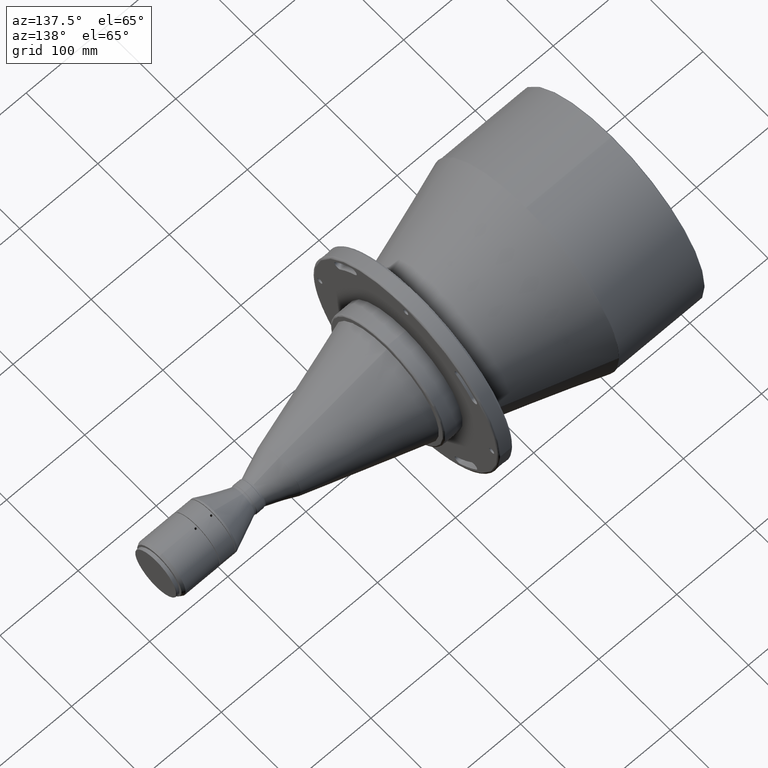
[diagram: clean part render]
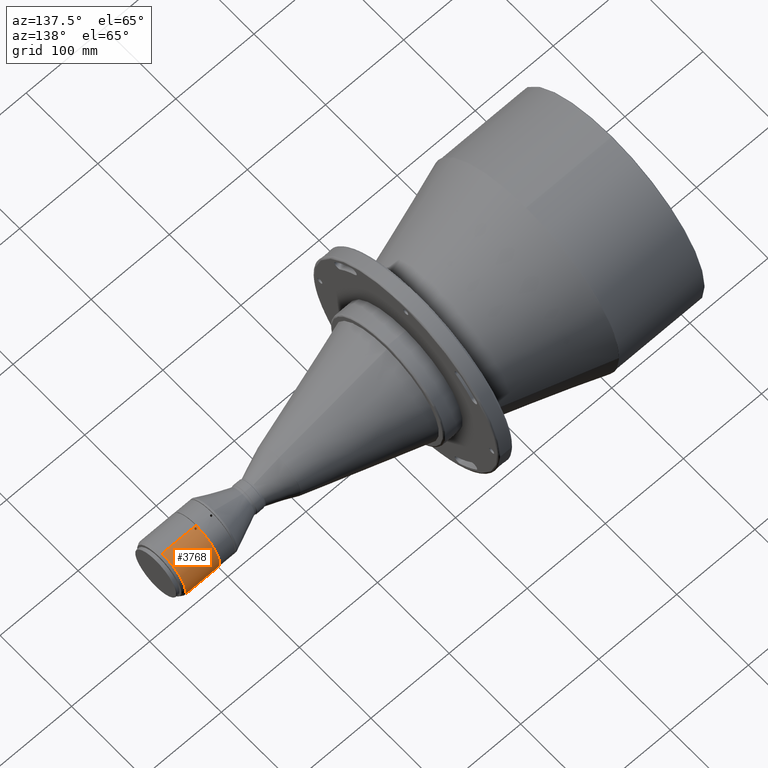
[diagram: same view with one face highlighted and labeled with its STEP entity id]
A machine part, auxiliary view. The second image highlights one B-rep face of the part: STEP entity #3768.
In plain terms, the highlighted cylindrical surface (edge-blend (fillet) strip) has radius 33 mm, axis along (-1, 0, 0).
Its self-contained STEP definition (entity closure, byte-faithful):
#7 = CARTESIAN_POINT ( 'NONE',  ( 243.5272282373895800, 28.02219267935578300, -17.42873081164597300 ) ) ;
#21 = CARTESIAN_POINT ( 'NONE',  ( 243.3651624783625800, 26.64153675590663200, -19.47379057306708100 ) ) ;
#28 = CARTESIAN_POINT ( 'NONE',  ( 284.2358983849999800, 0.0000000000000000000, 0.0000000000000000000 ) ) ;
#34 = CARTESIAN_POINT ( 'NONE',  ( 243.3651624175274700, 28.03931447828191600, -17.40105869158569600 ) ) ;
#38 = CARTESIAN_POINT ( 'NONE',  ( 243.0348375679012100, 26.64153675756148900, -19.47379057080311400 ) ) ;
#50 = CARTESIAN_POINT ( 'NONE',  ( 244.2923288920699500, 1.670705666017859000, 32.95802426565676100 ) ) ;
#73 = CARTESIAN_POINT ( 'NONE',  ( 241.9501112394534600, 27.26842502836673200, -18.58654292900261100 ) ) ;
#185 = FACE_BOUND ( 'NONE', #3283, .T. ) ;
#199 = CARTESIAN_POINT ( 'NONE',  ( 242.4320518004257400, 1.300115199559819000, 32.97458627196414900 ) ) ;
#251 = VERTEX_POINT ( 'NONE', #1190 ) ;
#261 = ORIENTED_EDGE ( 'NONE', *, *, #3414, .T. ) ;
#268 = EDGE_CURVE ( 'NONE', #904, #3269, #2795, .T. ) ;
#281 = FACE_OUTER_BOUND ( 'NONE', #776, .T. ) ;
#315 = CARTESIAN_POINT ( 'NONE',  ( 243.1999999999999900, 1.050101641439986900, 32.98328798865639300 ) ) ;
#325 = CARTESIAN_POINT ( 'NONE',  ( 243.2000000000000200, 28.03931447791268300, -17.40105869218066200 ) ) ;
#330 = CARTESIAN_POINT ( 'NONE',  ( 243.5272282371196300, 1.082627299092439300, 32.98229613588195300 ) ) ;
#342 = CARTESIAN_POINT ( 'NONE',  ( 243.2000000000000200, 28.03931447791268300, -17.40105869218066200 ) ) ;
#355 = CARTESIAN_POINT ( 'NONE',  ( 242.8727717497885700, 26.66077478309826500, -19.44754555795642400 ) ) ;
#379 = DIRECTION ( 'NONE',  ( -1.000000000000000000, 0.0000000000000000000, 0.0000000000000000000 ) ) ;
#386 = CARTESIAN_POINT ( 'NONE',  ( 242.5695962592725700, 27.95555595793834400, -17.53541680387095200 ) ) ;
#555 = CARTESIAN_POINT ( 'NONE',  ( 240.7000000000000200, 0.0000000000000000000, 33.00000000000000000 ) ) ;
#640 = CARTESIAN_POINT ( 'NONE',  ( 243.8304037311280600, 3.386583143060405600, 32.82582833711744300 ) ) ;
#647 = CARTESIAN_POINT ( 'NONE',  ( 244.4170361976247000, 27.54258587966261000, -18.17769468275628600 ) ) ;
#649 = CARTESIAN_POINT ( 'NONE',  ( 243.1999999999999900, 3.544028964507429400, 32.80914291319925300 ) ) ;
#666 = B_SPLINE_CURVE_WITH_KNOTS ( 'NONE', 3,
 ( #2677, #1448, #2390, #3945, #3032, #1162, #2988, #2723, #3919, #1130, #2049, #3636, #3349, #199, #2407, #3045, #3652, #3303 ),
 .UNSPECIFIED., .F., .F.,
 ( 4, 2, 2, 2, 2, 2, 2, 2, 4 ),
 ( 0.0000000000000000000, 0.0004884511457905904200, 0.0009769022915811808400, 0.001465353437371771100, 0.001953804583162361700, 0.002442255728952952200, 0.002930706874743542700, 0.003419158020534133700, 0.003907609166324725100 ),
 .UNSPECIFIED. ) ;
#674 = CARTESIAN_POINT ( 'NONE',  ( 243.2000000000000200, 26.64153675673405900, -19.47379057193509800 ) ) ;
#723 = CYLINDRICAL_SURFACE ( 'NONE', #1023, 33.00000000000000000 ) ;
#731 = CARTESIAN_POINT ( 'NONE',  ( 243.2000000000000200, 28.03931447791268300, -17.40105869218066200 ) ) ;
#743 = CARTESIAN_POINT ( 'NONE',  ( 284.2358983849999800, 0.0000000000000000000, 33.00000000000000000 ) ) ;
#768 = ORIENTED_EDGE ( 'NONE', *, *, #1565, .T. ) ;
#776 = EDGE_LOOP ( 'NONE', ( #3870, #768, #261, #3619 ) ) ;
#904 = VERTEX_POINT ( 'NONE', #731 ) ;
#935 = CARTESIAN_POINT ( 'NONE',  ( 244.4170361972857100, 1.971052437536436900, 32.94142639908850600 ) ) ;
#956 = CIRCLE ( 'NONE', #1385, 33.00000000000000000 ) ;
#971 = B_SPLINE_CURVE_WITH_KNOTS ( 'NONE', 3,
 ( #1278, #38, #355, #3742, #2830, #2236, #3462, #1264, #73, #1892, #3446, #3486, #2532, #982, #386, #2820, #2191, #342 ),
 .UNSPECIFIED., .F., .F.,
 ( 4, 2, 2, 2, 2, 2, 2, 2, 4 ),
 ( 0.0000000000000000000, 0.0004884511462644152800, 0.0009769022925288305600, 0.001465353438793245800, 0.001953804585057661100, 0.002442255731322076600, 0.002930706877586491700, 0.003419158023850906800, 0.003907609170115322300 ),
 .UNSPECIFIED. ) ;
#982 = CARTESIAN_POINT ( 'NONE',  ( 242.4320518003721100, 27.90677179116664800, -17.61322592641915100 ) ) ;
#1007 = FACE_BOUND ( 'NONE', #1269, .T. ) ;
#1023 = AXIS2_PLACEMENT_3D ( 'NONE', #2619, #1977, #2939 ) ;
#1024 = DIRECTION ( 'NONE',  ( -1.000000000000000000, 0.0000000000000000000, 0.0000000000000000000 ) ) ;
#1028 = ORIENTED_EDGE ( 'NONE', *, *, #1296, .F. ) ;
#1072 = EDGE_CURVE ( 'NONE', #2652, #3483, #666, .T. ) ;
#1130 = CARTESIAN_POINT ( 'NONE',  ( 241.9498893390875800, 2.136921316476925600, 32.93114253812770200 ) ) ;
#1162 = CARTESIAN_POINT ( 'NONE',  ( 242.2008022910318900, 3.064803770389668900, 32.85757571834730600 ) ) ;
#1190 = CARTESIAN_POINT ( 'NONE',  ( 240.7000000000000200, 4.041334437186266200E-015, -33.00000000000000000 ) ) ;
#1213 = DIRECTION ( 'NONE',  ( 1.000000000000000000, -0.0000000000000000000, -0.0000000000000000000 ) ) ;
#1264 = CARTESIAN_POINT ( 'NONE',  ( 241.9829638018006200, 27.17539497138055200, -18.72219348973983000 ) ) ;
#1268 = CARTESIAN_POINT ( 'NONE',  ( 244.2927177565511300, 2.925509807217036200, 32.87041680619736200 ) ) ;
#1269 = EDGE_LOOP ( 'NONE', ( #2884, #1745 ) ) ;
#1278 = CARTESIAN_POINT ( 'NONE',  ( 243.2000000000000200, 26.64153675673405900, -19.47379057193509800 ) ) ;
#1287 = CARTESIAN_POINT ( 'NONE',  ( 244.4501106612322000, 27.26938320606071600, -18.58513710309384200 ) ) ;
#1296 = EDGE_CURVE ( 'NONE', #3483, #2652, #3733, .T. ) ;
#1385 = AXIS2_PLACEMENT_3D ( 'NONE', #2673, #3582, #1714 ) ;
#1399 = EDGE_CURVE ( 'NONE', #3984, #1674, #1749, .T. ) ;
#1448 = CARTESIAN_POINT ( 'NONE',  ( 243.0348375681713500, 3.544028961279206000, 32.80914291181510800 ) ) ;
#1548 = CARTESIAN_POINT ( 'NONE',  ( 243.8299545228962300, 27.95568541493182100, -17.53521009982846500 ) ) ;
#1565 = EDGE_CURVE ( 'NONE', #3984, #251, #3795, .T. ) ;
#1568 = CARTESIAN_POINT ( 'NONE',  ( 243.9679481917600000, 3.295232320676106900, 32.83527193875876500 ) ) ;
#1578 = CARTESIAN_POINT ( 'NONE',  ( 244.1991977048675700, 1.531407275056893900, 32.96464918660382200 ) ) ;
#1674 = VERTEX_POINT ( 'NONE', #1676 ) ;
#1676 = CARTESIAN_POINT ( 'NONE',  ( 284.2358983849999800, 0.0000000000000000000, 33.00000000000000000 ) ) ;
#1714 = DIRECTION ( 'NONE',  ( 0.0000000000000000000, 0.0000000000000000000, 1.000000000000000000 ) ) ;
#1745 = ORIENTED_EDGE ( 'NONE', *, *, #2676, .F. ) ;
#1749 = CIRCLE ( 'NONE', #3994, 33.00000000000000000 ) ;
#1838 = CARTESIAN_POINT ( 'NONE',  ( 244.4177914834372400, 27.17672363376596700, -18.72027246540981300 ) ) ;
#1850 = CARTESIAN_POINT ( 'NONE',  ( 243.5275272952594300, 26.66081414439515400, -19.44749188355107300 ) ) ;
#1864 = CARTESIAN_POINT ( 'NONE',  ( 244.2011010631960900, 26.92429432919828300, -19.08130011854991200 ) ) ;
#1867 = CARTESIAN_POINT ( 'NONE',  ( 243.9686006644409700, 1.300931797316405400, 32.97454898397684500 ) ) ;
#1881 = CARTESIAN_POINT ( 'NONE',  ( 243.8299545225802900, 1.208094699775003700, 32.97793879944786300 ) ) ;
#1892 = CARTESIAN_POINT ( 'NONE',  ( 241.9498893387888400, 27.45074535546467900, -18.31619941496455800 ) ) ;
#1901 = VERTEX_POINT ( 'NONE', #555 ) ;
#1929 = ORIENTED_EDGE ( 'NONE', *, *, #1072, .F. ) ;
#1977 = DIRECTION ( 'NONE',  ( -1.000000000000000000, 0.0000000000000000000, 0.0000000000000000000 ) ) ;
#2049 = CARTESIAN_POINT ( 'NONE',  ( 241.9822085164412300, 1.973384263657683300, 32.94129115855688600 ) ) ;
#2191 = CARTESIAN_POINT ( 'NONE',  ( 243.0348376393533000, 28.03931447754344900, -17.40105869277562400 ) ) ;
#2236 = CARTESIAN_POINT ( 'NONE',  ( 242.2008022907430100, 26.92309339353066400, -19.08298578213473100 ) ) ;
#2355 = VECTOR ( 'NONE', #1024, 1000.000000000000000 ) ;
#2390 = CARTESIAN_POINT ( 'NONE',  ( 242.8727717498889500, 3.511681102508971400, 32.81268102575828000 ) ) ;
#2407 = CARTESIAN_POINT ( 'NONE',  ( 242.5695962592716100, 1.208338439408318100, 32.97793003841737700 ) ) ;
#2469 = CARTESIAN_POINT ( 'NONE',  ( 244.2923288924131100, 27.70713343956469300, -17.92588568189178100 ) ) ;
#2489 = CARTESIAN_POINT ( 'NONE',  ( 244.4498887601981500, 2.135223572593096400, 32.93125266179245600 ) ) ;
#2499 = CARTESIAN_POINT ( 'NONE',  ( 243.9679481919034700, 26.78856347857794500, -19.27139087076153600 ) ) ;
#2518 = CARTESIAN_POINT ( 'NONE',  ( 244.4177914831564900, 2.623869703671432700, 32.89586929119551700 ) ) ;
#2528 = CARTESIAN_POINT ( 'NONE',  ( 244.1991977052138100, 27.78251998490028300, -17.80856219706080200 ) ) ;
#2532 = CARTESIAN_POINT ( 'NONE',  ( 242.1988989332063500, 27.78140728193948000, -17.81030737450476700 ) ) ;
#2619 = CARTESIAN_POINT ( 'NONE',  ( 284.2358983849999800, 0.0000000000000000000, 0.0000000000000000000 ) ) ;
#2652 = VERTEX_POINT ( 'NONE', #649 ) ;
#2673 = CARTESIAN_POINT ( 'NONE',  ( 240.7000000000000200, 0.0000000000000000000, 0.0000000000000000000 ) ) ;
#2676 = EDGE_CURVE ( 'NONE', #3269, #904, #971, .T. ) ;
#2677 = CARTESIAN_POINT ( 'NONE',  ( 243.1999999999999900, 3.544028964507429400, 32.80914291319925300 ) ) ;
#2723 = CARTESIAN_POINT ( 'NONE',  ( 241.9829638021293200, 2.626197690907823700, 32.89567914796784700 ) ) ;
#2795 = B_SPLINE_CURVE_WITH_KNOTS ( 'NONE', 3,
 ( #325, #34, #7, #1548, #3711, #2528, #2469, #647, #4013, #1287, #1838, #2839, #1864, #2499, #3727, #1850, #21, #674 ),
 .UNSPECIFIED., .F., .F.,
 ( 4, 2, 2, 2, 2, 2, 2, 2, 4 ),
 ( 0.003907609170115322300, 0.004396060515922168100, 0.004884511861729013900, 0.005372963207535858900, 0.005861414553342704700, 0.006349865899149550500, 0.006838317244956395500, 0.007326768590763241300, 0.007815219936570087100 ),
 .UNSPECIFIED. ) ;
#2820 = CARTESIAN_POINT ( 'NONE',  ( 242.8724726924287400, 28.02215766576379300, -17.42878742649577400 ) ) ;
#2830 = CARTESIAN_POINT ( 'NONE',  ( 242.4313993279186500, 26.78903671865397800, -19.27072432277884000 ) ) ;
#2839 = CARTESIAN_POINT ( 'NONE',  ( 244.2927177567811700, 27.00386108335735000, -18.96877421543132800 ) ) ;
#2884 = ORIENTED_EDGE ( 'NONE', *, *, #268, .F. ) ;
#2939 = DIRECTION ( 'NONE',  ( 0.0000000000000000000, 0.0000000000000000000, 1.000000000000000000 ) ) ;
#2967 = VECTOR ( 'NONE', #379, 1000.000000000000000 ) ;
#2988 = CARTESIAN_POINT ( 'NONE',  ( 242.1076711053225400, 2.925936482973091800, 32.87037445201048800 ) ) ;
#3032 = CARTESIAN_POINT ( 'NONE',  ( 242.4313993281475600, 3.294418453215925100, 32.83534850268885900 ) ) ;
#3045 = CARTESIAN_POINT ( 'NONE',  ( 242.8724726923214500, 1.082693835889695600, 32.98229412064340900 ) ) ;
#3117 = CARTESIAN_POINT ( 'NONE',  ( 243.3651624172794100, 1.050101640711568000, 32.98328798867958500 ) ) ;
#3143 = CARTESIAN_POINT ( 'NONE',  ( 243.5275272951961400, 3.511614938453610200, 32.81268827643954500 ) ) ;
#3232 = CARTESIAN_POINT ( 'NONE',  ( 243.2000000000000200, 26.64153675673405900, -19.47379057193509800 ) ) ;
#3269 = VERTEX_POINT ( 'NONE', #3232 ) ;
#3283 = EDGE_LOOP ( 'NONE', ( #1028, #1929 ) ) ;
#3303 = CARTESIAN_POINT ( 'NONE',  ( 243.1999999999999900, 1.050101641439986900, 32.98328798865639300 ) ) ;
#3344 = EDGE_CURVE ( 'NONE', #1674, #1901, #3913, .T. ) ;
#3349 = CARTESIAN_POINT ( 'NONE',  ( 242.1988989333657100, 1.533474994784806800, 32.96455814628345800 ) ) ;
#3414 = EDGE_CURVE ( 'NONE', #251, #1901, #956, .T. ) ;
#3432 = CARTESIAN_POINT ( 'NONE',  ( 244.4501106609341400, 2.460509260827550700, 32.90854715354586100 ) ) ;
#3446 = CARTESIAN_POINT ( 'NONE',  ( 241.9822085161677900, 27.54130284500405400, -18.17964648293948900 ) ) ;
#3462 = CARTESIAN_POINT ( 'NONE',  ( 242.1076711050124600, 27.00361106575589800, -18.96912255027040900 ) ) ;
#3464 = CARTESIAN_POINT ( 'NONE',  ( 243.3651624781107600, 3.544028964067275300, 32.80914291151395200 ) ) ;
#3478 = CARTESIAN_POINT ( 'NONE',  ( 284.2358983849999800, 4.041334437186266200E-015, -33.00000000000000000 ) ) ;
#3483 = VERTEX_POINT ( 'NONE', #3569 ) ;
#3486 = CARTESIAN_POINT ( 'NONE',  ( 242.1072822406552200, 27.70690419360727200, -17.92624803608244800 ) ) ;
#3569 = CARTESIAN_POINT ( 'NONE',  ( 243.1999999999999900, 1.050101641439986900, 32.98328798865639300 ) ) ;
#3582 = DIRECTION ( 'NONE',  ( 1.000000000000000000, -0.0000000000000000000, -0.0000000000000000000 ) ) ;
#3619 = ORIENTED_EDGE ( 'NONE', *, *, #3344, .F. ) ;
#3636 = CARTESIAN_POINT ( 'NONE',  ( 242.1072822408568800, 1.671134097180109900, 32.95800690991662000 ) ) ;
#3652 = CARTESIAN_POINT ( 'NONE',  ( 243.0348376391876900, 1.050101642168404600, 32.98328798863320800 ) ) ;
#3711 = CARTESIAN_POINT ( 'NONE',  ( 243.9686006647654600, 27.90633119983153400, -17.61391447700582400 ) ) ;
#3727 = CARTESIAN_POINT ( 'NONE',  ( 243.8304037312633700, 26.73470966846117800, -19.34578120278045800 ) ) ;
#3733 = B_SPLINE_CURVE_WITH_KNOTS ( 'NONE', 3,
 ( #315, #3117, #330, #1881, #1867, #1578, #50, #935, #2489, #3432, #2518, #1268, #3766, #1568, #640, #3143, #3464, #3759 ),
 .UNSPECIFIED., .F., .F.,
 ( 4, 2, 2, 2, 2, 2, 2, 2, 4 ),
 ( 0.003907609166324725100, 0.004396060511711753900, 0.004884511857098783700, 0.005372963202485812500, 0.005861414547872841400, 0.006349865893259871100, 0.006838317238646900000, 0.007326768584033929700, 0.007815219929420958600 ),
 .UNSPECIFIED. ) ;
#3735 = DIRECTION ( 'NONE',  ( 0.0000000000000000000, 0.0000000000000000000, 1.000000000000000000 ) ) ;
#3742 = CARTESIAN_POINT ( 'NONE',  ( 242.5700454678354800, 26.73456655676523400, -19.34597868513683500 ) ) ;
#3759 = CARTESIAN_POINT ( 'NONE',  ( 243.1999999999999900, 3.544028964507429400, 32.80914291319925300 ) ) ;
#3766 = CARTESIAN_POINT ( 'NONE',  ( 244.2011010629860600, 3.062743474969072700, 32.85777292736074900 ) ) ;
#3768 = ADVANCED_FACE ( 'NONE', ( #1007, #185, #281 ), #723, .T. ) ;
#3795 = LINE ( 'NONE', #3478, #2967 ) ;
#3870 = ORIENTED_EDGE ( 'NONE', *, *, #1399, .F. ) ;
#3885 = CARTESIAN_POINT ( 'NONE',  ( 284.2358983849999800, 4.041334437186266200E-015, -33.00000000000000000 ) ) ;
#3913 = LINE ( 'NONE', #743, #2355 ) ;
#3919 = CARTESIAN_POINT ( 'NONE',  ( 241.9501112397799700, 2.462205830830869900, 32.90842026026044900 ) ) ;
#3945 = CARTESIAN_POINT ( 'NONE',  ( 242.5700454680246900, 3.386825723675054100, 32.82580313992833300 ) ) ;
#3984 = VERTEX_POINT ( 'NONE', #3885 ) ;
#3994 = AXIS2_PLACEMENT_3D ( 'NONE', #28, #1213, #3735 ) ;
#4013 = CARTESIAN_POINT ( 'NONE',  ( 244.4498887605253400, 27.45168959716965400, -18.31478418765638600 ) ) ;